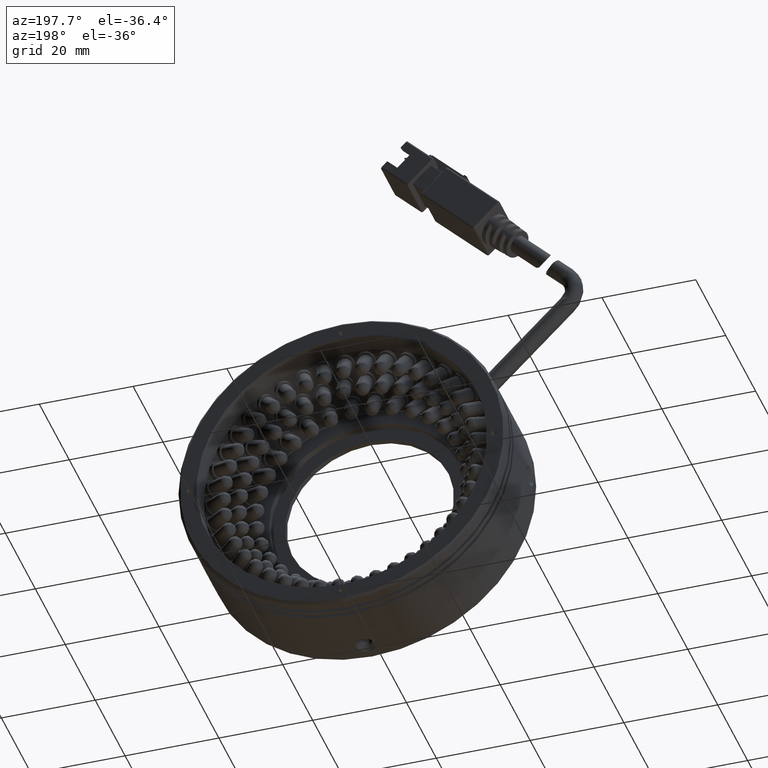
[diagram: clean part render]
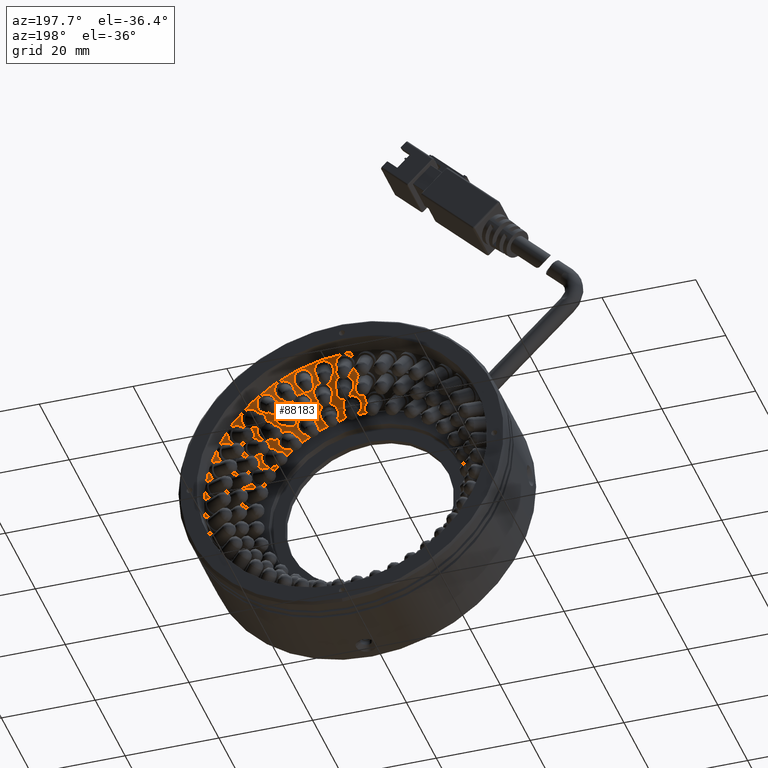
[diagram: same view with one face highlighted and labeled with its STEP entity id]
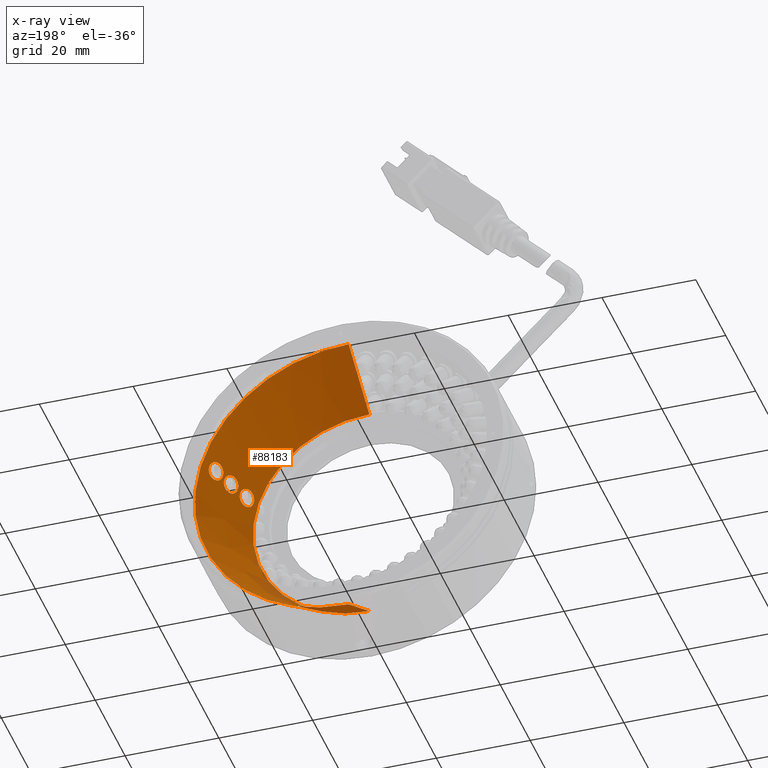
[diagram: x-ray of the same camera — body ghosted, the highlighted face saturated]
A machine part, auxiliary view. The second image highlights one B-rep face of the part: STEP entity #88183.
The next image is the same camera in x-ray: the body ghosted, the highlighted face saturated — about 2% of this face is hidden behind the body in this view.
In plain terms, the highlighted conical surface has half-angle 30 deg.
Its self-contained STEP definition (entity closure, byte-faithful):
#871 = CIRCLE ( 'NONE', #43222, 32.82679491924312000 ) ;
#3254 = CARTESIAN_POINT ( 'NONE',  ( -12.75285995087290300, -22.90049156454726300, -6.201010446595689500 ) ) ;
#3593 = CARTESIAN_POINT ( 'NONE',  ( -11.20081004975191000, -20.74919422721202600, -7.275873687865863600 ) ) ;
#4215 = ORIENTED_EDGE ( 'NONE', *, *, #7927, .T. ) ;
#4718 = VERTEX_POINT ( 'NONE', #51571 ) ;
#4925 = CARTESIAN_POINT ( 'NONE',  ( -9.349170443654768900, -17.27095219960765600, -6.372947375612600500 ) ) ;
#5089 = ORIENTED_EDGE ( 'NONE', *, *, #38704, .F. ) ;
#5281 = CARTESIAN_POINT ( 'NONE',  ( -8.821146971874705800, -15.67489499653628300, -4.778918423771942900 ) ) ;
#5443 = CARTESIAN_POINT ( 'NONE',  ( -8.413876169111896200, -13.23533109045160000, -1.642760635693757200 ) ) ;
#5523 = CARTESIAN_POINT ( 'NONE',  ( -37.22376356038467500, -23.93693679055959600, -13.10242548495533300 ) ) ;
#5590 = VERTEX_POINT ( 'NONE', #60340 ) ;
#5624 = CARTESIAN_POINT ( 'NONE',  ( -9.334321844905343100, -15.80407495720009200, -3.419534017201082000 ) ) ;
#5984 = CARTESIAN_POINT ( 'NONE',  ( -10.84937954993924900, -18.11929515729573100, -3.161316746830988000 ) ) ;
#6686 = EDGE_CURVE ( 'NONE', #11808, #47385, #92595, .T. ) ;
#7446 = CARTESIAN_POINT ( 'NONE',  ( -8.928822298869880200, -14.45383034152049000, -2.257863045922480400 ) ) ;
#7467 = ORIENTED_EDGE ( 'NONE', *, *, #24531, .T. ) ;
#7706 = LINE ( 'NONE', #38129, #50562 ) ;
#7927 = EDGE_CURVE ( 'NONE', #5590, #35513, #62592, .T. ) ;
#8879 = CARTESIAN_POINT ( 'NONE',  ( -13.01137501898977100, -22.78664006245179500, -5.129927685971869000 ) ) ;
#9182 = B_SPLINE_CURVE_WITH_KNOTS ( 'NONE', 3,
 ( #94358, #91511, #99588, #51480, #3254, #59510, #11272, #67573, #19390, #75665, #27465, #83777, #35577, #91882, #43656, #99923, #51823, #3593, #59857, #11601, #67917, #19724, #76030, #27812, #84132, #35928, #92215, #44013, #100256, #52165 ),
 .UNSPECIFIED., .F., .F.,
 ( 4, 2, 2, 2, 2, 2, 2, 2, 2, 2, 2, 2, 2, 2, 4 ),
 ( 0.0000000000000000000, 0.0003712797795253538500, 0.0007425595590507076900, 0.001113839338576061600, 0.001485119118101415400, 0.002227678677152122000, 0.002970238236202829500, 0.003341518015728181300, 0.003712797795253533100, 0.004084077574778885300, 0.004455357354304236200, 0.004826637133829588800, 0.005197916913354940600, 0.005569196692880292400, 0.005940476472405644200 ),
 .UNSPECIFIED. ) ;
#9684 = CARTESIAN_POINT ( 'NONE',  ( -13.02552537956600000, -22.62469928756747000, -4.794673379721226400 ) ) ;
#9777 = DIRECTION ( 'NONE',  ( 0.0000000000000000000, -1.000000000000000000, 0.0000000000000000000 ) ) ;
#9912 = CIRCLE ( 'NONE', #53142, 24.82679491924311700 ) ;
#10051 = CARTESIAN_POINT ( 'NONE',  ( -11.83736247457644300, -20.23103244609193000, -4.006532682998652300 ) ) ;
#11272 = CARTESIAN_POINT ( 'NONE',  ( -12.60728330870478300, -22.80869779404919100, -6.531338884192630100 ) ) ;
#11601 = CARTESIAN_POINT ( 'NONE',  ( -11.07150132760119600, -20.45683518125358800, -7.082872525403971900 ) ) ;
#11808 = VERTEX_POINT ( 'NONE', #13672 ) ;
#12451 = EDGE_CURVE ( 'NONE', #72829, #4718, #7706, .T. ) ;
#12574 = CARTESIAN_POINT ( 'NONE',  ( -10.69391506030775000, -18.89767060550029500, -5.010444887128729300 ) ) ;
#12651 = ORIENTED_EDGE ( 'NONE', *, *, #91981, .T. ) ;
#12734 = CARTESIAN_POINT ( 'NONE',  ( -11.30685288458715800, -19.74168720096015400, -4.686348423263758000 ) ) ;
#12920 = CARTESIAN_POINT ( 'NONE',  ( -9.178785874775750000, -16.95077291668531300, -6.291049512819571800 ) ) ;
#13081 = CARTESIAN_POINT ( 'NONE',  ( -6.947035873999397800, -11.77433763085074700, -3.218807825940104300 ) ) ;
#13259 = CARTESIAN_POINT ( 'NONE',  ( -8.867900524240134500, -15.63189835998557300, -4.535582452737599200 ) ) ;
#13261 = CARTESIAN_POINT ( 'NONE',  ( -8.894803085474391600, -15.61562321729900700, -4.414045907446978700 ) ) ;
#13427 = CARTESIAN_POINT ( 'NONE',  ( -8.592029168678237700, -13.55952224738744700, -1.701324057992627000 ) ) ;
#13506 = DIRECTION ( 'NONE',  ( 0.0000000000000000000, 0.0000000000000000000, -1.000000000000000000 ) ) ;
#13606 = CARTESIAN_POINT ( 'NONE',  ( -9.602563064129928000, -16.04281922991336300, -3.074596707568936900 ) ) ;
#13672 = CARTESIAN_POINT ( 'NONE',  ( -10.97139746822790900, -19.65084598282548400, -5.607219600601271600 ) ) ;
#13688 = CARTESIAN_POINT ( 'NONE',  ( -37.22376356038467500, -23.93693679055959600, -37.92922040419845300 ) ) ;
#13836 = CARTESIAN_POINT ( 'NONE',  ( -6.884320410707353200, -11.79803620081498600, -3.458895674143138300 ) ) ;
#13960 = CARTESIAN_POINT ( 'NONE',  ( -10.91284621023043600, -18.38033501642151200, -3.422590549674593400 ) ) ;
#14160 = B_SPLINE_CURVE_WITH_KNOTS ( 'NONE', 3,
 ( #85317, #53354, #13081, #69412, #21232, #77513, #29336, #85674, #37437, #93715, #45551, #101772, #53679, #5443, #61731, #13427, #69744, #21578, #77862, #29671, #86021, #7446, #67257, #19081, #75345, #27133, #83460, #35262, #91542, #43348 ),
 .UNSPECIFIED., .F., .F.,
 ( 4, 2, 2, 2, 2, 2, 2, 2, 2, 2, 2, 2, 2, 2, 4 ),
 ( 0.005940089811716093600, 0.006311346577332131600, 0.006682603342948169500, 0.007053860108564208300, 0.007425116874180246300, 0.008167630405412323900, 0.008910143936644403200, 0.009281400702260439500, 0.009652657467876473900, 0.01002391423349250800, 0.01039517099910854500, 0.01076642776472458100, 0.01113768453034061700, 0.01150894129595665000, 0.01188019806157268600 ),
 .UNSPECIFIED. ) ;
#14721 = DIRECTION ( 'NONE',  ( 0.0000000000000000000, 0.8660254037844417100, 0.4999999999999947800 ) ) ;
#18693 = LINE ( 'NONE', #63038, #101722 ) ;
#18805 = ORIENTED_EDGE ( 'NONE', *, *, #32181, .T. ) ;
#19081 = CARTESIAN_POINT ( 'NONE',  ( -8.963272227565497000, -14.68613589355478600, -2.545652972331773300 ) ) ;
#19390 = CARTESIAN_POINT ( 'NONE',  ( -12.43871005122651700, -22.65560785068989000, -6.828651439797508400 ) ) ;
#19724 = CARTESIAN_POINT ( 'NONE',  ( -10.97527357027851700, -20.19557052773370400, -6.832326301883228800 ) ) ;
#20295 = CARTESIAN_POINT ( 'NONE',  ( -12.98326276377082600, -22.32809338902466200, -4.398556008482399800 ) ) ;
#20727 = CARTESIAN_POINT ( 'NONE',  ( -10.55165342016369400, -18.82956148342834300, -5.350411272043534600 ) ) ;
#20873 = ORIENTED_EDGE ( 'NONE', *, *, #78471, .T. ) ;
#21065 = CARTESIAN_POINT ( 'NONE',  ( -9.031504377540054300, -16.64092692672496200, -6.140262415025436100 ) ) ;
#21099 = CARTESIAN_POINT ( 'NONE',  ( -12.83285644439020600, -21.85910386375297800, -4.021607577732284600 ) ) ;
#21232 = CARTESIAN_POINT ( 'NONE',  ( -7.076106692341271700, -11.79513577520816800, -2.869164217522610600 ) ) ;
#21469 = CARTESIAN_POINT ( 'NONE',  ( -12.90522073083825200, -22.05589059023470000, -4.153402780323741400 ) ) ;
#21578 = CARTESIAN_POINT ( 'NONE',  ( -8.739880947575665400, -13.87750774357599000, -1.826419727712608400 ) ) ;
#21754 = CARTESIAN_POINT ( 'NONE',  ( -10.03891066313493700, -16.56075870662781900, -2.760065474045580600 ) ) ;
#22100 = CARTESIAN_POINT ( 'NONE',  ( -10.93591967968945000, -18.59682341810249900, -3.725675135836166200 ) ) ;
#22278 = VERTEX_POINT ( 'NONE', #26173 ) ;
#23305 = CARTESIAN_POINT ( 'NONE',  ( -13.02038233001479900, -22.73921714616938800, -5.015951641370814500 ) ) ;
#24531 = EDGE_CURVE ( 'NONE', #84382, #69999, #18693, .T. ) ;
#25313 = EDGE_LOOP ( 'NONE', ( #79987, #83973 ) ) ;
#25708 = CARTESIAN_POINT ( 'NONE',  ( -12.26864234529796600, -20.79672334065590500, -3.779185052719635300 ) ) ;
#26173 = CARTESIAN_POINT ( 'NONE',  ( -8.867900524240134500, -15.63189835998557300, -4.535582452737599200 ) ) ;
#27133 = CARTESIAN_POINT ( 'NONE',  ( -8.957203326535331900, -14.87116679829278700, -2.871519680230999700 ) ) ;
#27275 = CARTESIAN_POINT ( 'NONE',  ( -37.22376356038467500, -10.08053033000837900, 19.72436943428778400 ) ) ;
#27465 = CARTESIAN_POINT ( 'NONE',  ( -12.12493232793792500, -22.29038655443641300, -7.225419750444430600 ) ) ;
#27812 = CARTESIAN_POINT ( 'NONE',  ( -10.91777981333198300, -19.97760580449259700, -6.537112049436104600 ) ) ;
#28825 = CARTESIAN_POINT ( 'NONE',  ( -10.38674042300878000, -18.69997469035209300, -5.657355032862384700 ) ) ;
#29183 = CARTESIAN_POINT ( 'NONE',  ( -8.915851543193198800, -16.35805227840360500, -5.929421002153609300 ) ) ;
#29336 = CARTESIAN_POINT ( 'NONE',  ( -7.238289563124720200, -11.87646773622310500, -2.543890634460603800 ) ) ;
#29427 = AXIS2_PLACEMENT_3D ( 'NONE', #68495, #44265, #100839 ) ;
#29671 = CARTESIAN_POINT ( 'NONE',  ( -8.853455903908024300, -14.17965397209994400, -2.014162149194320200 ) ) ;
#29858 = CARTESIAN_POINT ( 'NONE',  ( -10.37907690419019400, -17.08163437869744100, -2.713844439079648600 ) ) ;
#29899 = CARTESIAN_POINT ( 'NONE',  ( -11.25172484133289100, -19.70675697444111300, -4.791519991838314700 ) ) ;
#30220 = CARTESIAN_POINT ( 'NONE',  ( -10.91904154981445500, -18.76064610886515600, -4.059886663788177000 ) ) ;
#31220 = FACE_BOUND ( 'NONE', #52019, .T. ) ;
#31770 = CARTESIAN_POINT ( 'NONE',  ( -11.02906259333316500, -19.63050069349715400, -5.365546695313018900 ) ) ;
#32181 = EDGE_CURVE ( 'NONE', #41299, #22278, #70401, .T. ) ;
#32447 = CARTESIAN_POINT ( 'NONE',  ( -11.15103831716061600, -19.65605408660995600, -5.013648408069423500 ) ) ;
#32796 = CARTESIAN_POINT ( 'NONE',  ( -11.10580327208902500, -19.64063776084752200, -5.130341115855539900 ) ) ;
#32810 = CARTESIAN_POINT ( 'NONE',  ( -10.97139746822790900, -19.65084598282548400, -5.607219600601271600 ) ) ;
#33497 = CARTESIAN_POINT ( 'NONE',  ( -12.12455415522020500, -20.59167873058228800, -3.826228933152606300 ) ) ;
#35099 = ORIENTED_EDGE ( 'NONE', *, *, #41857, .T. ) ;
#35262 = CARTESIAN_POINT ( 'NONE',  ( -8.911686564592518100, -14.99792439189853600, -3.217892473057579700 ) ) ;
#35513 = VERTEX_POINT ( 'NONE', #13836 ) ;
#35520 = CARTESIAN_POINT ( 'NONE',  ( -6.884320410707353200, -11.79803620081498600, -3.458895674143138300 ) ) ;
#35577 = CARTESIAN_POINT ( 'NONE',  ( -11.72513467833159200, -21.70573010128096300, -7.462122455044579700 ) ) ;
#35668 = CARTESIAN_POINT ( 'NONE',  ( -6.807631024408758300, -11.91637024576157000, -3.936911142543776600 ) ) ;
#35768 = CARTESIAN_POINT ( 'NONE',  ( -6.835062941288971000, -11.84269979061580900, -3.701426713261017000 ) ) ;
#35928 = CARTESIAN_POINT ( 'NONE',  ( -10.90112476634757000, -19.80673047929643700, -6.203944362538209100 ) ) ;
#36113 = CARTESIAN_POINT ( 'NONE',  ( -6.801093587351917200, -11.96244364711914100, -4.051600957357604400 ) ) ;
#36686 = CARTESIAN_POINT ( 'NONE',  ( -6.856177500705681100, -11.81513895937984400, -3.580032842482859600 ) ) ;
#36798 = CARTESIAN_POINT ( 'NONE',  ( -6.802305019039219600, -12.07341497643465700, -4.274737094338211000 ) ) ;
#36924 = CARTESIAN_POINT ( 'NONE',  ( -10.14062590243303900, -18.44786232036542000, -6.009204737600254200 ) ) ;
#37036 = CARTESIAN_POINT ( 'NONE',  ( -6.839563509695442400, -12.28151117929002500, -4.582233767604753500 ) ) ;
#37132 = CARTESIAN_POINT ( 'NONE',  ( -6.810231198816904200, -12.13824062233152500, -4.382469374822384200 ) ) ;
#37267 = CARTESIAN_POINT ( 'NONE',  ( -8.835120618625861500, -16.10745174363107800, -5.662748313610089600 ) ) ;
#37437 = CARTESIAN_POINT ( 'NONE',  ( -7.428229221761161400, -12.01627222088110100, -2.253024514914973700 ) ) ;
#37629 = CARTESIAN_POINT ( 'NONE',  ( -8.928177660683779500, -15.60983028909972400, -4.294708815332623600 ) ) ;
#37865 = CARTESIAN_POINT ( 'NONE',  ( -6.860987213434952100, -12.36063885575566700, -4.675612541663583400 ) ) ;
#37946 = CARTESIAN_POINT ( 'NONE',  ( -6.917415154974694500, -12.53401571494767300, -4.847953657192131300 ) ) ;
#37985 = CARTESIAN_POINT ( 'NONE',  ( -10.55709455306796800, -17.40588057306633700, -2.772571431988047200 ) ) ;
#38066 = CARTESIAN_POINT ( 'NONE',  ( -6.951535951564639300, -12.62559690431884400, -4.924300941285840900 ) ) ;
#38085 = CARTESIAN_POINT ( 'NONE',  ( -7.030876722604587800, -12.81833922291536100, -5.058013710927038000 ) ) ;
#38129 = CARTESIAN_POINT ( 'NONE',  ( -37.22376356038466800, -10.08053033000837900, -45.92922040419845300 ) ) ;
#38335 = CARTESIAN_POINT ( 'NONE',  ( -10.86363757012438900, -18.86580715908697700, -4.414637699112347500 ) ) ;
#38704 = EDGE_CURVE ( 'NONE', #4718, #69999, #871, .T. ) ;
#38820 = FACE_BOUND ( 'NONE', #84416, .T. ) ;
#39205 = CARTESIAN_POINT ( 'NONE',  ( -12.79003052456387300, -21.75501594575085200, -3.964576743777202200 ) ) ;
#39944 = CARTESIAN_POINT ( 'NONE',  ( -7.076691604798039500, -12.92069682584179600, -5.115840628717760000 ) ) ;
#39968 = CARTESIAN_POINT ( 'NONE',  ( -7.230793995618748600, -13.23488507271386000, -5.242987335892967100 ) ) ;
#40037 = CONICAL_SURFACE ( 'NONE', #29427, 32.82679491924312000, 0.5235987755982928200 ) ;
#40179 = CARTESIAN_POINT ( 'NONE',  ( -7.408940935999692300, -13.55907932401382300, -5.301546526510617400 ) ) ;
#40323 = CARTESIAN_POINT ( 'NONE',  ( -7.346692182824760700, -13.44960948789047500, -5.289784670401299800 ) ) ;
#40667 = CARTESIAN_POINT ( 'NONE',  ( -8.145574671963622400, -14.62184594158522600, -4.927322933910614800 ) ) ;
#40871 = CARTESIAN_POINT ( 'NONE',  ( -7.599676135218410300, -13.87818598977165500, -5.300515232762707600 ) ) ;
#40988 = CARTESIAN_POINT ( 'NONE',  ( -7.176764788814402600, -13.12911087712302700, -5.208219379599232600 ) ) ;
#41004 = CARTESIAN_POINT ( 'NONE',  ( -7.737266284864238800, -14.08710321826613800, -5.251193494577281100 ) ) ;
#41111 = CARTESIAN_POINT ( 'NONE',  ( -8.008773047020374800, -14.45702297491176600, -5.065539900504439300 ) ) ;
#41299 = VERTEX_POINT ( 'NONE', #42725 ) ;
#41674 = CARTESIAN_POINT ( 'NONE',  ( -8.396706192782659200, -14.87073381244779900, -4.576739450438740400 ) ) ;
#41812 = CARTESIAN_POINT ( 'NONE',  ( -8.334948660891084800, -14.81437667154405300, -4.671679628198138100 ) ) ;
#41857 = EDGE_CURVE ( 'NONE', #72829, #84382, #9912, .T. ) ;
#42145 = CARTESIAN_POINT ( 'NONE',  ( -8.511816934480458800, -14.96211874956041400, -4.376524862079755000 ) ) ;
#42235 = CARTESIAN_POINT ( 'NONE',  ( -8.565604597876339100, -14.99772153178734900, -4.270895548798312900 ) ) ;
#42725 = CARTESIAN_POINT ( 'NONE',  ( -10.83491478007536900, -18.88318347884826300, -4.535604529954079000 ) ) ;
#43161 = CARTESIAN_POINT ( 'NONE',  ( -8.711886608792658700, -15.06317891142425000, -3.932127785650084500 ) ) ;
#43222 = AXIS2_PLACEMENT_3D ( 'NONE', #58004, #9777, #66054 ) ;
#43261 = CARTESIAN_POINT ( 'NONE',  ( -8.792677655818005500, -15.07056238026987500, -3.698196938539488600 ) ) ;
#43348 = CARTESIAN_POINT ( 'NONE',  ( -8.857851851272080500, -15.04536951588221600, -3.458917499663762400 ) ) ;
#43499 = CARTESIAN_POINT ( 'NONE',  ( -8.665785655200442900, -15.04843982922754700, -4.048557275411843300 ) ) ;
#43656 = CARTESIAN_POINT ( 'NONE',  ( -11.47363247211986700, -21.27624040369975900, -7.451237633165088200 ) ) ;
#44013 = CARTESIAN_POINT ( 'NONE',  ( -10.92734173252657800, -19.69207227018145500, -5.851376381872256600 ) ) ;
#44265 = DIRECTION ( 'NONE',  ( -0.0000000000000000000, 1.000000000000000000, 0.0000000000000000000 ) ) ;
#44894 = CARTESIAN_POINT ( 'NONE',  ( -8.857851851272080500, -15.04536951588221600, -3.458917499663762400 ) ) ;
#45019 = CARTESIAN_POINT ( 'NONE',  ( -9.737863919355682200, -17.90961333353110200, -6.334256419324483500 ) ) ;
#45242 = B_SPLINE_CURVE_WITH_KNOTS ( 'NONE', 3,
 ( #52489, #13261, #37629, #93902, #45723, #101957, #53859, #5624, #61914, #13606, #69918, #21754, #78055, #29858, #86202, #37985, #94229, #46084, #102301, #54211, #5984, #62243, #13960, #70281, #22100, #78398, #30220, #86561, #38335, #94575 ),
 .UNSPECIFIED., .F., .F.,
 ( 4, 2, 2, 2, 2, 2, 2, 2, 2, 2, 2, 2, 2, 2, 4 ),
 ( 0.005940255759117621400, 0.006311523052970052300, 0.006682790346822484000, 0.007054057640674914900, 0.007425324934527346600, 0.008167859522232217100, 0.008910394109937089200, 0.009281661403789521000, 0.009652928697641952700, 0.01002419599149438600, 0.01039546328534681800, 0.01076673057919925000, 0.01113799787305168300, 0.01150926516690411700, 0.01188053246075654800 ),
 .UNSPECIFIED. ) ;
#45259 = CARTESIAN_POINT ( 'NONE',  ( -8.827947764434654200, -15.06354256114486600, -3.579476012543592500 ) ) ;
#45385 = CARTESIAN_POINT ( 'NONE',  ( -8.794509970769883700, -15.90156146470272200, -5.354169306972243800 ) ) ;
#45530 = DIRECTION ( 'NONE',  ( 6.123233995736701900E-017, 0.8660254037844417100, -0.4999999999999947800 ) ) ;
#45551 = CARTESIAN_POINT ( 'NONE',  ( -7.781609619073970300, -12.35710932981634300, -1.868096196349380500 ) ) ;
#45723 = CARTESIAN_POINT ( 'NONE',  ( -9.053803211517278600, -15.63295220664439900, -3.943945225062063500 ) ) ;
#46084 = CARTESIAN_POINT ( 'NONE',  ( -10.70527167690484300, -17.72359049293682200, -2.898028413879833600 ) ) ;
#47385 = VERTEX_POINT ( 'NONE', #52611 ) ;
#50562 = VECTOR ( 'NONE', #45530, 1000.000000000000000 ) ;
#51480 = CARTESIAN_POINT ( 'NONE',  ( -12.79617469199723200, -22.91706480712437600, -6.083747285442243900 ) ) ;
#51571 = CARTESIAN_POINT ( 'NONE',  ( -37.22376356038466800, -10.08053033000837900, -45.92922040419845300 ) ) ;
#51823 = CARTESIAN_POINT ( 'NONE',  ( -11.30267126945376100, -20.95644652846260300, -7.368992416169615600 ) ) ;
#52019 = EDGE_LOOP ( 'NONE', ( #18805, #20873 ) ) ;
#52165 = CARTESIAN_POINT ( 'NONE',  ( -10.97139746822790900, -19.65084598282548400, -5.607219600601271600 ) ) ;
#52384 = CARTESIAN_POINT ( 'NONE',  ( -10.99696737477875200, -19.63544761001100600, -5.485276761427555500 ) ) ;
#52489 = CARTESIAN_POINT ( 'NONE',  ( -8.867900524240134500, -15.63189835998557300, -4.535582452737599200 ) ) ;
#52611 = CARTESIAN_POINT ( 'NONE',  ( -12.93183671224410200, -22.90609988664232000, -5.607242029885863800 ) ) ;
#52841 = CARTESIAN_POINT ( 'NONE',  ( -10.83491478007536900, -18.88318347884826300, -4.535604529954079000 ) ) ;
#53142 = AXIS2_PLACEMENT_3D ( 'NONE', #5523, #61812, #13506 ) ;
#53192 = CARTESIAN_POINT ( 'NONE',  ( -9.411355381770601300, -17.38045875003232200, -6.384763199444242000 ) ) ;
#53354 = CARTESIAN_POINT ( 'NONE',  ( -6.912463408065116600, -11.78093338916286800, -3.337758129791516200 ) ) ;
#53520 = CARTESIAN_POINT ( 'NONE',  ( -8.796200044574497700, -15.74692090412090700, -5.015198748371726200 ) ) ;
#53679 = CARTESIAN_POINT ( 'NONE',  ( -8.217912884373916400, -12.91940937831117600, -1.642070366619402300 ) ) ;
#53859 = CARTESIAN_POINT ( 'NONE',  ( -9.212873022827649200, -15.71639879255905300, -3.617661399379305600 ) ) ;
#54098 = CARTESIAN_POINT ( 'NONE',  ( -12.69423651262165500, -21.54411215948580200, -3.873254882589696200 ) ) ;
#54211 = CARTESIAN_POINT ( 'NONE',  ( -10.81965079124455500, -18.02510188572615800, -3.086314700279045600 ) ) ;
#54937 = CARTESIAN_POINT ( 'NONE',  ( -12.64151798896770500, -21.43758115925772500, -3.838758719528584200 ) ) ;
#58004 = CARTESIAN_POINT ( 'NONE',  ( -37.22376356038467500, -10.08053033000837900, -13.10242548495533300 ) ) ;
#59510 = CARTESIAN_POINT ( 'NONE',  ( -12.65827504124743400, -22.84611691837745800, -6.424943239094665700 ) ) ;
#59857 = CARTESIAN_POINT ( 'NONE',  ( -11.15378041314236100, -20.64764683599598200, -7.217600836327473100 ) ) ;
#60340 = CARTESIAN_POINT ( 'NONE',  ( -8.857851851272080500, -15.04536951588221600, -3.458917499663762400 ) ) ;
#60856 = CARTESIAN_POINT ( 'NONE',  ( -10.77215249866695700, -18.90675508400951800, -4.775699695787689200 ) ) ;
#61009 = CARTESIAN_POINT ( 'NONE',  ( -12.98093418629605700, -22.86183754016998300, -5.364583545478951400 ) ) ;
#61198 = CARTESIAN_POINT ( 'NONE',  ( -9.233074450426379100, -17.05637292751037400, -6.325956600875479700 ) ) ;
#61563 = CARTESIAN_POINT ( 'NONE',  ( -8.840998057851202000, -15.64817344529392400, -4.657118569549587600 ) ) ;
#61731 = CARTESIAN_POINT ( 'NONE',  ( -8.476855933807440700, -13.34435468505563100, -1.654763280658904800 ) ) ;
#61812 = DIRECTION ( 'NONE',  ( 0.0000000000000000000, -1.000000000000000000, 0.0000000000000000000 ) ) ;
#61914 = CARTESIAN_POINT ( 'NONE',  ( -9.400085439719381600, -15.85806614120600600, -3.325914140899783900 ) ) ;
#62243 = CARTESIAN_POINT ( 'NONE',  ( -10.89634450590326500, -18.29829390896041400, -3.330743022937286300 ) ) ;
#62592 = B_SPLINE_CURVE_WITH_KNOTS ( 'NONE', 3,
 ( #44894, #45259, #43261, #43161, #43499, #42235, #42145, #41674, #41812, #40667, #41111, #41004, #40871, #40179, #40323, #39968, #40988, #39944, #38085, #38066, #37946, #37865, #37036, #37132, #36798, #36113, #35668, #35768, #36686, #35520 ),
 .UNSPECIFIED., .F., .F.,
 ( 4, 2, 2, 2, 2, 2, 2, 2, 2, 2, 2, 2, 2, 2, 4 ),
 ( 0.0000000000000000000, 0.0003712556132322550900, 0.0007425112264645101800, 0.001113766839696765200, 0.001485022452929020400, 0.002227533679393535600, 0.002970044905858051600, 0.003341300519090306500, 0.003712556132322561900, 0.004083811745554817200, 0.004455067358787071300, 0.004826322972019327100, 0.005197578585251582000, 0.005568834198483836900, 0.005940089811716093600 ),
 .UNSPECIFIED. ) ;
#63038 = CARTESIAN_POINT ( 'NONE',  ( -37.22376356038467500, -10.08053033000837900, 19.72436943428778400 ) ) ;
#65526 = CARTESIAN_POINT ( 'NONE',  ( -12.95929705797020200, -22.88956307841174700, -5.485859871323306400 ) ) ;
#66054 = DIRECTION ( 'NONE',  ( 0.0000000000000000000, 0.0000000000000000000, -1.000000000000000000 ) ) ;
#66305 = CARTESIAN_POINT ( 'NONE',  ( -37.22376356038467500, -23.93693679055959600, 11.72436943428778200 ) ) ;
#67257 = CARTESIAN_POINT ( 'NONE',  ( -8.944768004992390300, -14.53629007301764300, -2.349446942484710200 ) ) ;
#67573 = CARTESIAN_POINT ( 'NONE',  ( -12.49770881124920200, -22.71373262077582600, -6.733018441041128500 ) ) ;
#67917 = CARTESIAN_POINT ( 'NONE',  ( -11.03564978644855000, -20.36638242309505000, -7.005951571853274600 ) ) ;
#68495 = CARTESIAN_POINT ( 'NONE',  ( -37.22376356038467500, -10.08053033000837900, -13.10242548495533300 ) ) ;
#68907 = CARTESIAN_POINT ( 'NONE',  ( -10.64915194359016000, -18.88204477016092400, -5.127285817610521200 ) ) ;
#69246 = CARTESIAN_POINT ( 'NONE',  ( -9.077885832890368400, -16.74290330197431900, -6.198308452295618700 ) ) ;
#69412 = CARTESIAN_POINT ( 'NONE',  ( -7.028551355033677300, -11.78128089491210200, -2.985115146024835700 ) ) ;
#69624 = CARTESIAN_POINT ( 'NONE',  ( -13.02147757649042100, -22.55766394377527100, -4.688057890386377700 ) ) ;
#69744 = CARTESIAN_POINT ( 'NONE',  ( -8.644633349719949700, -13.66616273240122800, -1.735624884399956900 ) ) ;
#69918 = CARTESIAN_POINT ( 'NONE',  ( -9.749851814198336800, -16.20137015629026000, -2.939851182665041300 ) ) ;
#69999 = VERTEX_POINT ( 'NONE', #27275 ) ;
#70281 = CARTESIAN_POINT ( 'NONE',  ( -10.93265178466329800, -18.52924481986892100, -3.619392546734451000 ) ) ;
#70401 = B_SPLINE_CURVE_WITH_KNOTS ( 'NONE', 3,
 ( #52841, #76683, #60856, #12574, #68907, #20727, #77014, #28825, #85152, #36924, #93209, #45019, #101244, #53192, #4925, #61198, #12920, #69246, #21065, #77338, #29183, #85509, #37267, #93558, #45385, #101607, #53520, #5281, #61563, #13259 ),
 .UNSPECIFIED., .F., .F.,
 ( 4, 2, 2, 2, 2, 2, 2, 2, 2, 2, 2, 2, 2, 2, 4 ),
 ( 0.0000000000000000000, 0.0003712659849448562700, 0.0007425319698897125400, 0.001113797954834568800, 0.001485063939779425100, 0.002227595909669132300, 0.002970127879558839700, 0.003341393864503687200, 0.003712659849448535000, 0.004083925834393382900, 0.004455191819338230800, 0.004826457804283077800, 0.005197723789227925600, 0.005568989774172773500, 0.005940255759117621400 ),
 .UNSPECIFIED. ) ;
#71443 = FACE_OUTER_BOUND ( 'NONE', #88461, .T. ) ;
#72829 = VERTEX_POINT ( 'NONE', #13688 ) ;
#75345 = CARTESIAN_POINT ( 'NONE',  ( -8.965787244733904900, -14.75424601966168400, -2.651603906791665000 ) ) ;
#75665 = CARTESIAN_POINT ( 'NONE',  ( -12.25708302004705500, -22.45814088714822900, -7.086171275392440600 ) ) ;
#76030 = CARTESIAN_POINT ( 'NONE',  ( -10.95170340361716500, -20.11787555406222000, -6.738299421683501000 ) ) ;
#76683 = CARTESIAN_POINT ( 'NONE',  ( -10.80619209128891200, -18.90055973734911300, -4.656570934325704200 ) ) ;
#76790 = EDGE_CURVE ( 'NONE', #47385, #11808, #9182, .T. ) ;
#77014 = CARTESIAN_POINT ( 'NONE',  ( -10.49920391182877700, -18.79308332620420800, -5.456418537542369100 ) ) ;
#77338 = CARTESIAN_POINT ( 'NONE',  ( -8.950786361775472600, -16.44909785128471600, -6.006050396940844700 ) ) ;
#77513 = CARTESIAN_POINT ( 'NONE',  ( -7.181140837824134600, -11.84290634287109100, -2.648417279948783100 ) ) ;
#77862 = CARTESIAN_POINT ( 'NONE',  ( -8.782278177738991300, -13.98194799294504500, -1.883126649440312100 ) ) ;
#78055 = CARTESIAN_POINT ( 'NONE',  ( -10.18362075459634900, -16.76538536355328200, -2.713159425782246000 ) ) ;
#78398 = CARTESIAN_POINT ( 'NONE',  ( -10.92901948919881300, -18.71256114829929400, -3.946272673589756000 ) ) ;
#78471 = EDGE_CURVE ( 'NONE', #22278, #41299, #45242, .T. ) ;
#78976 = CARTESIAN_POINT ( 'NONE',  ( -12.52641369816806200, -21.22242298655099200, -3.791936002134254300 ) ) ;
#79987 = ORIENTED_EDGE ( 'NONE', *, *, #76790, .T. ) ;
#81464 = CARTESIAN_POINT ( 'NONE',  ( -11.69134171127243600, -20.07162278838894300, -4.141665284602559900 ) ) ;
#83460 = CARTESIAN_POINT ( 'NONE',  ( -8.946301022630679600, -14.91989112843505400, -2.984773319623366100 ) ) ;
#83777 = CARTESIAN_POINT ( 'NONE',  ( -11.86037169673522100, -21.91611400893726700, -7.412445310141694500 ) ) ;
#83973 = ORIENTED_EDGE ( 'NONE', *, *, #6686, .T. ) ;
#84132 = CARTESIAN_POINT ( 'NONE',  ( -10.90738571019338100, -19.91438606634540100, -6.428608702081743500 ) ) ;
#84382 = VERTEX_POINT ( 'NONE', #66305 ) ;
#84416 = EDGE_LOOP ( 'NONE', ( #4215, #12651 ) ) ;
#85152 = CARTESIAN_POINT ( 'NONE',  ( -10.32630059893413100, -18.64276716343718800, -5.752636849745449900 ) ) ;
#85317 = CARTESIAN_POINT ( 'NONE',  ( -6.884320410707353200, -11.79803620081498600, -3.458895674143138300 ) ) ;
#85509 = CARTESIAN_POINT ( 'NONE',  ( -8.857560532325147000, -16.18589689547963700, -5.756448471637813900 ) ) ;
#85674 = CARTESIAN_POINT ( 'NONE',  ( -7.361594574603075500, -11.96287550608669600, -2.346365803714186300 ) ) ;
#86021 = CARTESIAN_POINT ( 'NONE',  ( -8.882807419399149800, -14.27413211350214100, -2.088944171607172200 ) ) ;
#86202 = CARTESIAN_POINT ( 'NONE',  ( -10.44196119625171100, -17.19071551909038900, -2.725879883457394700 ) ) ;
#86561 = CARTESIAN_POINT ( 'NONE',  ( -10.88645623700842300, -18.83729043205628200, -4.293769604146040000 ) ) ;
#88183 = ADVANCED_FACE ( 'NONE', ( #71443, #38820, #31220, #92877 ), #40037, .F. ) ;
#88414 = CARTESIAN_POINT ( 'NONE',  ( -11.49125345438035200, -19.88525599283857700, -4.393720439474996900 ) ) ;
#88461 = EDGE_LOOP ( 'NONE', ( #93476, #35099, #7467, #5089 ) ) ;
#91173 = CARTESIAN_POINT ( 'NONE',  ( -11.42638338692029600, -19.83066129004162200, -4.487617565017103500 ) ) ;
#91511 = CARTESIAN_POINT ( 'NONE',  ( -12.90437647836788000, -22.92263662751613800, -5.728623694041725200 ) ) ;
#91542 = CARTESIAN_POINT ( 'NONE',  ( -8.887756030932303400, -15.02719641421012400, -3.338358612568243200 ) ) ;
#91882 = CARTESIAN_POINT ( 'NONE',  ( -11.53577057863968300, -21.38577568265098700, -7.463110352227115400 ) ) ;
#91981 = EDGE_CURVE ( 'NONE', #35513, #5590, #14160, .T. ) ;
#92088 = CARTESIAN_POINT ( 'NONE',  ( -13.00033182739299100, -22.40970762220880600, -4.490662082762670000 ) ) ;
#92215 = CARTESIAN_POINT ( 'NONE',  ( -10.90509387028696000, -19.76233906551966500, -6.088470636970227700 ) ) ;
#92595 = B_SPLINE_CURVE_WITH_KNOTS ( 'NONE', 3,
 ( #32810, #52384, #31770, #32796, #32447, #29899, #12734, #91173, #88414, #81464, #10051, #33497, #25708, #101409, #78976, #54937, #54098, #39205, #21099, #21469, #102470, #20295, #92088, #69624, #9684, #23305, #8879, #61009, #65526, #96804 ),
 .UNSPECIFIED., .F., .F.,
 ( 4, 2, 2, 2, 2, 2, 2, 2, 2, 2, 2, 2, 2, 2, 4 ),
 ( 0.005940476472405644200, 0.006311757764212208600, 0.006683039056018772900, 0.007054320347825336400, 0.007425601639631900800, 0.008168164223245028700, 0.008910726806858157400, 0.009282008098664723500, 0.009653289390471289600, 0.01002457068227785600, 0.01039585197408442000, 0.01076713326589098600, 0.01113841455769755100, 0.01150969584950411700, 0.01188097714131068300 ),
 .UNSPECIFIED. ) ;
#92877 = FACE_BOUND ( 'NONE', #25313, .T. ) ;
#93209 = CARTESIAN_POINT ( 'NONE',  ( -10.00604419361575200, -18.28163047711662500, -6.147928757920592300 ) ) ;
#93476 = ORIENTED_EDGE ( 'NONE', *, *, #12451, .F. ) ;
#93558 = CARTESIAN_POINT ( 'NONE',  ( -8.803609847323453900, -15.96561677761261500, -5.462281588311950200 ) ) ;
#93715 = CARTESIAN_POINT ( 'NONE',  ( -7.633052177853025800, -12.19942520458067900, -2.002449893236559300 ) ) ;
#93902 = CARTESIAN_POINT ( 'NONE',  ( -9.007377143115451900, -15.61833281883109800, -4.060264868000970800 ) ) ;
#94229 = CARTESIAN_POINT ( 'NONE',  ( -10.60975398451057200, -17.51246660540419200, -2.806969973435182300 ) ) ;
#94358 = CARTESIAN_POINT ( 'NONE',  ( -12.93183671224410200, -22.90609988664232000, -5.607242029885863800 ) ) ;
#94575 = CARTESIAN_POINT ( 'NONE',  ( -10.83491478007536900, -18.88318347884826300, -4.535604529954079000 ) ) ;
#96804 = CARTESIAN_POINT ( 'NONE',  ( -12.93183671224410200, -22.90609988664232000, -5.607242029885863800 ) ) ;
#99588 = CARTESIAN_POINT ( 'NONE',  ( -12.87165831328342400, -22.92795880389946800, -5.848168776107151200 ) ) ;
#99923 = CARTESIAN_POINT ( 'NONE',  ( -11.35727065372145500, -21.06184417489251400, -7.404044652462973300 ) ) ;
#100256 = CARTESIAN_POINT ( 'NONE',  ( -10.94582766582691100, -19.66624429292021900, -5.729161943084554800 ) ) ;
#100839 = DIRECTION ( 'NONE',  ( 0.0000000000000000000, 0.0000000000000000000, 1.000000000000000000 ) ) ;
#101244 = CARTESIAN_POINT ( 'NONE',  ( -9.601408514183374300, -17.69998593289733400, -6.383752454611435900 ) ) ;
#101409 = CARTESIAN_POINT ( 'NONE',  ( -12.46361717523232700, -21.11328696526424100, -3.779867101260965700 ) ) ;
#101607 = CARTESIAN_POINT ( 'NONE',  ( -8.790890391808977400, -15.79218372679773100, -5.130276471277671400 ) ) ;
#101722 = VECTOR ( 'NONE', #14721, 1000.000000000000000 ) ;
#101772 = CARTESIAN_POINT ( 'NONE',  ( -8.072558764443783700, -12.71521586574073100, -1.688836050723104200 ) ) ;
#101957 = CARTESIAN_POINT ( 'NONE',  ( -9.156714573996810100, -15.68216290976813100, -3.722509882268100900 ) ) ;
#102301 = CARTESIAN_POINT ( 'NONE',  ( -10.74788259490611800, -17.82785498399299200, -2.954897975873665800 ) ) ;
#102470 = CARTESIAN_POINT ( 'NONE',  ( -12.93533088519109600, -22.14979847055307600, -4.228623500848698300 ) ) ;